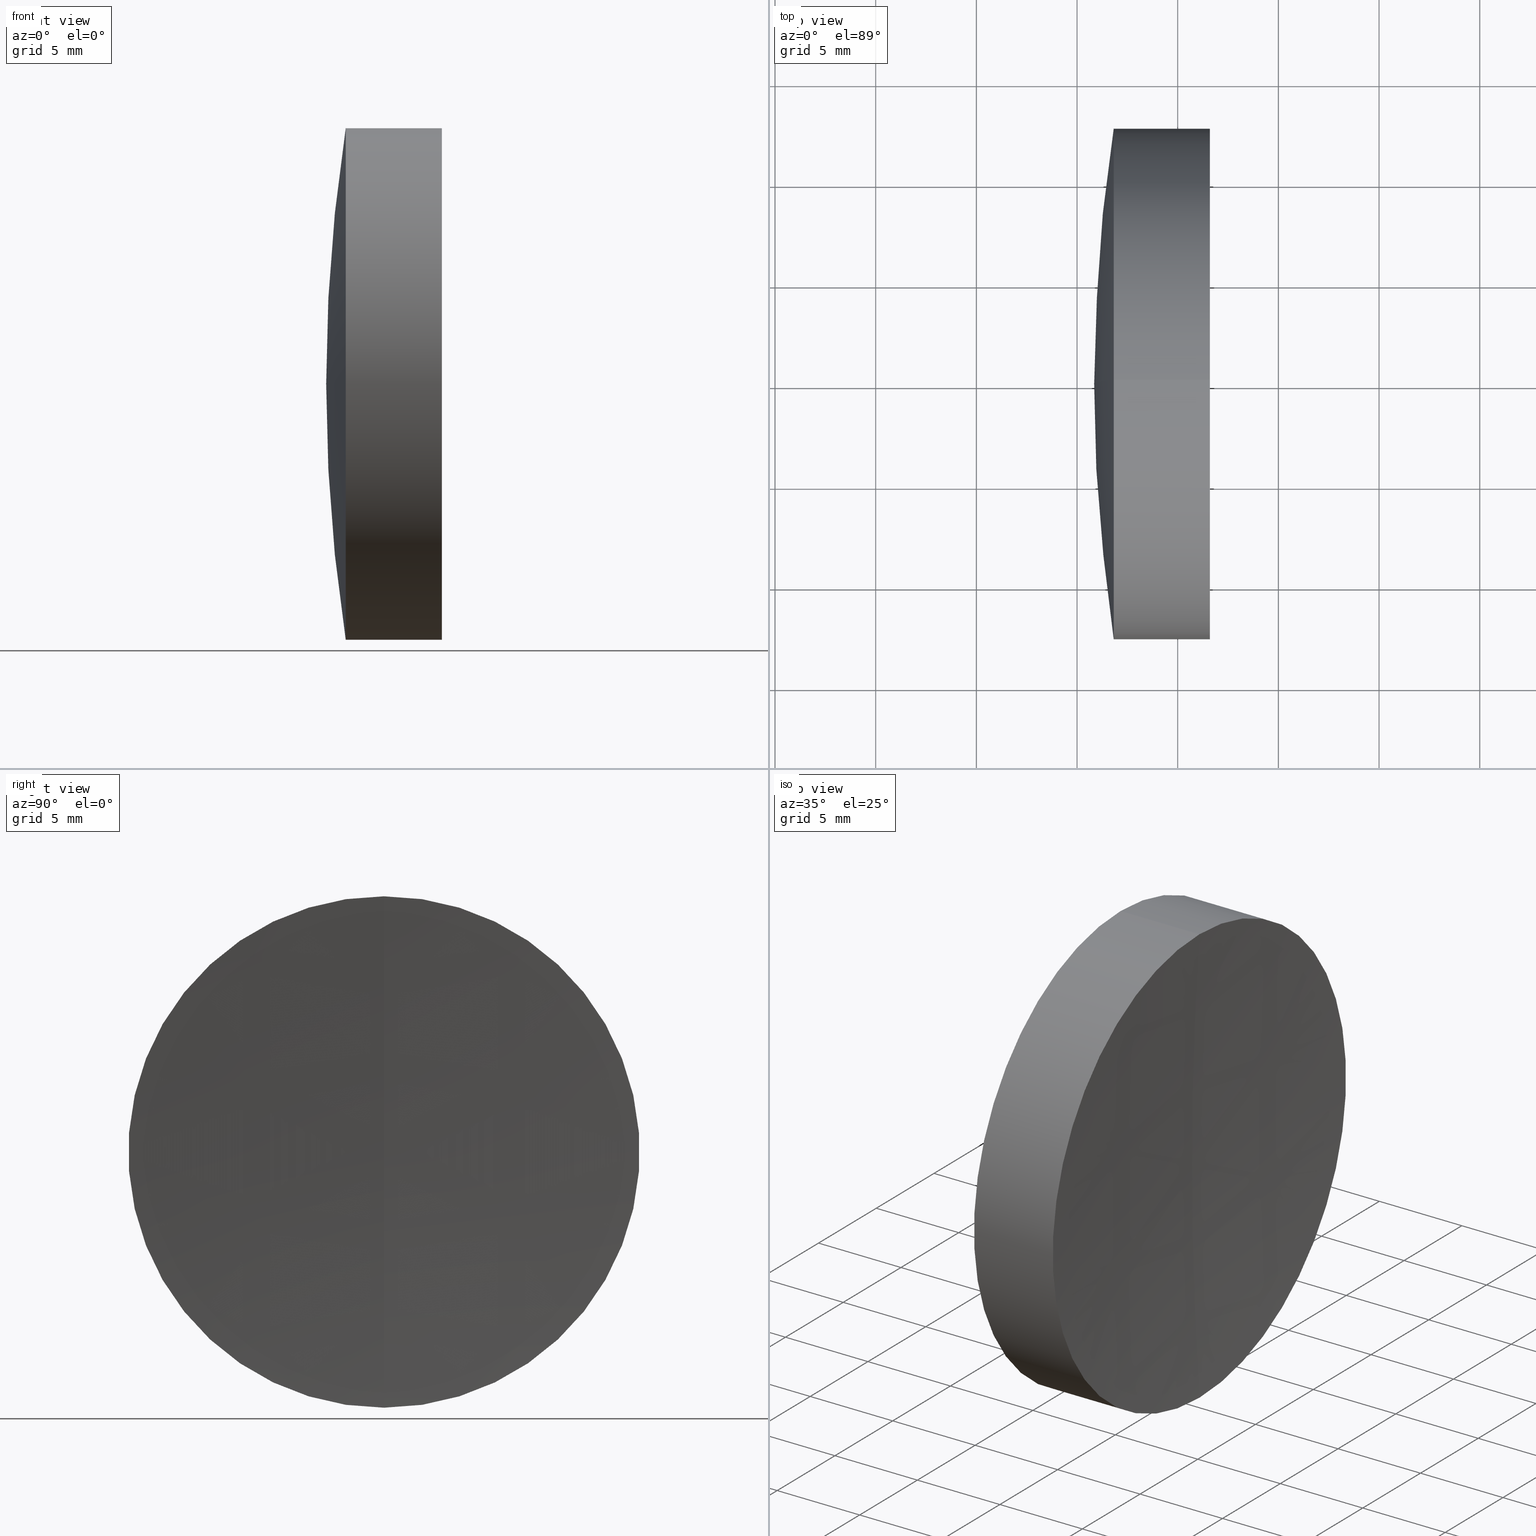
[diagram: canonical four-view strip — front | top / right | iso, engineering-drawing reading convention]
A machine part, canonical four-view strip (front | top / right | iso — engineering-drawing reading convention). The complete STEP part file that produces these views, byte-faithful:
ISO-10303-21;
HEADER;
FILE_DESCRIPTION (( 'STEP AP214' ),
    '1' );
FILE_NAME ('145128.STEP',
    '2019-06-03T09:07:29',
    ( 'user' ),
    ( '΢���й�' ),
    'SwSTEP 2.0',
    'SolidWorks 2016',
    '' );
FILE_SCHEMA (( 'AUTOMOTIVE_DESIGN' ));
ENDSEC;

DATA;
#1 = DIRECTION ( 'NONE',  ( 0.0000000000000000000, 0.0000000000000000000, 1.000000000000000000 ) ) ;
#2 = FACE_OUTER_BOUND ( 'NONE', #242, .T. ) ;
#3 = CARTESIAN_POINT ( 'NONE',  ( 371.5952472455173800, 1.555301434917140400E-015, -12.70000000000001500 ) ) ;
#4 = ORIENTED_EDGE ( 'NONE', *, *, #344, .F. ) ;
#5 = COLOUR_RGB ( '',1.000000000000000000, 1.000000000000000000, 1.000000000000000000 ) ;
#6 = CIRCLE ( 'NONE', #49, 12.69999999999971900 ) ;
#7 = STYLED_ITEM ( 'NONE', ( #332 ), #229 ) ;
#8 = CARTESIAN_POINT ( 'NONE',  ( 124.5233095260452400, 0.0000000000000000000, 12.69999999999971900 ) ) ;
#9 = ORIENTED_EDGE ( 'NONE', *, *, #106, .F. ) ;
#10 = EDGE_CURVE ( 'NONE', #26, #231, #109, .T. ) ;
#11 = ORIENTED_EDGE ( 'NONE', *, *, #302, .F. ) ;
#12 = CARTESIAN_POINT ( 'NONE',  ( 369.3504997922063400, 0.0000000000000000000, -2.743593203835203200E-013 ) ) ;
#13 = PRESENTATION_STYLE_ASSIGNMENT (( #93 ) ) ;
#14 = AXIS2_PLACEMENT_3D ( 'NONE', #253, #254, #248 ) ;
#15 = ORIENTED_EDGE ( 'NONE', *, *, #276, .T. ) ;
#16 = VERTEX_POINT ( 'NONE', #72 ) ;
#17 = AXIS2_PLACEMENT_3D ( 'NONE', #318, #194, #128 ) ;
#18 = FILL_AREA_STYLE ('',( #48 ) ) ;
#19 = EDGE_LOOP ( 'NONE', ( #157, #345, #137, #331 ) ) ;
#20 = CARTESIAN_POINT ( 'NONE',  ( 368.5899110541722100, 1.555301434917112200E-015, -12.70000000000006500 ) ) ;
#21 = DIRECTION ( 'NONE',  ( -1.000000000000000000, -0.0000000000000000000, -0.0000000000000000000 ) ) ;
#22 = VERTEX_POINT ( 'NONE', #3 ) ;
#23 = CIRCLE ( 'NONE', #267, 181.5499999999999800 ) ;
#24 = CIRCLE ( 'NONE', #308, 12.69999999999979500 ) ;
#25 = CARTESIAN_POINT ( 'NONE',  ( 371.5952472455173800, 0.0000000000000000000, 12.70000000000001500 ) ) ;
#26 = VERTEX_POINT ( 'NONE', #304 ) ;
#27 = DIRECTION ( 'NONE',  ( 0.0000000000000000000, -1.000000000000000000, -1.224646799147353200E-016 ) ) ;
#28 = CARTESIAN_POINT ( 'NONE',  ( 366.8207835879254600, 0.0000000000000000000, 0.0000000000000000000 ) ) ;
#29 = CIRCLE ( 'NONE', #272, 12.69999999999971900 ) ;
#30 = AXIS2_PLACEMENT_3D ( 'NONE', #221, #214, #219 ) ;
#31 = UNCERTAINTY_MEASURE_WITH_UNIT (LENGTH_MEASURE( 1.000000000000000100E-005 ), #114, 'distance_accuracy_value', 'NONE');
#32 = ADVANCED_FACE ( 'NONE', ( #258 ), #133, .F. ) ;
#33 = ORIENTED_EDGE ( 'NONE', *, *, #64, .T. ) ;
#34 = CARTESIAN_POINT ( 'NONE',  ( 449.4504997922063600, 0.0000000000000000000, -2.808750536690215900E-013 ) ) ;
#35 =( GEOMETRIC_REPRESENTATION_CONTEXT ( 3 ) GLOBAL_UNCERTAINTY_ASSIGNED_CONTEXT ( ( #31 ) ) GLOBAL_UNIT_ASSIGNED_CONTEXT ( ( #114, #115, #116 ) ) REPRESENTATION_CONTEXT ( 'NONE', 'WORKASPACE' ) );
#36 = DIRECTION ( 'NONE',  ( 0.0000000000000000000, 0.0000000000000000000, 1.000000000000000000 ) ) ;
#37 = ORIENTED_EDGE ( 'NONE', *, *, #86, .F. ) ;
#38 = ORIENTED_EDGE ( 'NONE', *, *, #243, .F. ) ;
#39 = DIRECTION ( 'NONE',  ( 0.0000000000000000000, -1.224646799147353200E-016, 1.000000000000000000 ) ) ;
#40 =( GEOMETRIC_REPRESENTATION_CONTEXT ( 3 ) GLOBAL_UNCERTAINTY_ASSIGNED_CONTEXT ( ( #170 ) ) GLOBAL_UNIT_ASSIGNED_CONTEXT ( ( #190, #50, #218 ) ) REPRESENTATION_CONTEXT ( 'NONE', 'WORKASPACE' ) );
#41 = VECTOR ( 'NONE', #65, 1000.000000000000000 ) ;
#42 = DIRECTION ( 'NONE',  ( -0.0000000000000000000, 1.000000000000000000, 1.224646799147353200E-016 ) ) ;
#43 = AXIS2_PLACEMENT_3D ( 'NONE', #275, #280, #66 ) ;
#44 = CARTESIAN_POINT ( 'NONE',  ( 262.9404997922063700, 0.0000000000000000000, -2.808750536783838100E-013 ) ) ;
#45 = FILL_AREA_STYLE_COLOUR ( '', #191 ) ;
#46 = LINE ( 'NONE', #323, #290 ) ;
#47 = CARTESIAN_POINT ( 'NONE',  ( 368.5899110541722100, 1.555301434917104100E-015, -12.69999999999971900 ) ) ;
#48 = FILL_AREA_STYLE_COLOUR ( '', #5 ) ;
#49 = AXIS2_PLACEMENT_3D ( 'NONE', #161, #163, #172 ) ;
#50 =( NAMED_UNIT ( * ) PLANE_ANGLE_UNIT ( ) SI_UNIT ( $, .RADIAN. ) );
#51 = EDGE_CURVE ( 'NONE', #210, #26, #55, .T. ) ;
#52 = SHAPE_DEFINITION_REPRESENTATION ( #185, #229 ) ;
#53 = DIRECTION ( 'NONE',  ( 0.0000000000000000000, 1.224646799147353200E-016, -1.000000000000000000 ) ) ;
#54 = MECHANICAL_DESIGN_GEOMETRIC_PRESENTATION_REPRESENTATION (  '', ( #151 ), #35 ) ;
#55 = CIRCLE ( 'NONE', #88, 106.4100000000000100 ) ;
#56 = AXIS2_PLACEMENT_3D ( 'NONE', #165, #264, #249 ) ;
#57 = DIRECTION ( 'NONE',  ( 0.0000000000000000000, 0.0000000000000000000, 1.000000000000000000 ) ) ;
#58 = DIRECTION ( 'NONE',  ( 0.0000000000000000000, 1.000000000000000000, -0.0000000000000000000 ) ) ;
#59 = CARTESIAN_POINT ( 'NONE',  ( 552.7004997922064100, 0.0000000000000000000, 0.0000000000000000000 ) ) ;
#60 = ORIENTED_EDGE ( 'NONE', *, *, #113, .F. ) ;
#61 = CIRCLE ( 'NONE', #30, 83.59999999999999400 ) ;
#62 = SPHERICAL_SURFACE ( 'NONE', #300, 83.59999999999999400 ) ;
#63 = DIRECTION ( 'NONE',  ( -1.000000000000000000, -0.0000000000000000000, -0.0000000000000000000 ) ) ;
#64 = EDGE_CURVE ( 'NONE', #210, #277, #101, .T. ) ;
#65 = DIRECTION ( 'NONE',  ( -1.000000000000000000, -0.0000000000000000000, -0.0000000000000000000 ) ) ;
#66 = DIRECTION ( 'NONE',  ( 0.0000000000000000000, -1.224646799147353200E-016, 1.000000000000000000 ) ) ;
#67 = VERTEX_POINT ( 'NONE', #25 ) ;
#68 = EDGE_CURVE ( 'NONE', #231, #16, #29, .T. ) ;
#69 = CARTESIAN_POINT ( 'NONE',  ( 552.7004997922064100, 0.0000000000000000000, 0.0000000000000000000 ) ) ;
#70 = AXIS2_PLACEMENT_3D ( 'NONE', #103, #126, #141 ) ;
#71 = SPHERICAL_SURFACE ( 'NONE', #111, 83.59999999999999400 ) ;
#72 = CARTESIAN_POINT ( 'NONE',  ( 366.8207835879254600, 1.555301434917101200E-015, -12.69999999999997600 ) ) ;
#73 = AXIS2_PLACEMENT_3D ( 'NONE', #261, #74, #75 ) ;
#74 = DIRECTION ( 'NONE',  ( -0.0000000000000000000, -1.000000000000000000, -0.0000000000000000000 ) ) ;
#75 = DIRECTION ( 'NONE',  ( 0.0000000000000000000, 0.0000000000000000000, -1.000000000000000000 ) ) ;
#76 = ORIENTED_EDGE ( 'NONE', *, *, #64, .F. ) ;
#77 = SURFACE_STYLE_USAGE ( .BOTH. , #314 ) ;
#78 = FACE_OUTER_BOUND ( 'NONE', #19, .T. ) ;
#79 = AXIS2_PLACEMENT_3D ( 'NONE', #299, #189, #309 ) ;
#80 = CIRCLE ( 'NONE', #324, 12.69999999999971900 ) ;
#81 = CARTESIAN_POINT ( 'NONE',  ( 368.5899110541722100, 0.0000000000000000000, 0.0000000000000000000 ) ) ;
#82 = AXIS2_PLACEMENT_3D ( 'NONE', #153, #155, #156 ) ;
#83 = EDGE_LOOP ( 'NONE', ( #234, #347, #198, #38 ) ) ;
#84 = SPHERICAL_SURFACE ( 'NONE', #70, 106.4100000000000100 ) ;
#85 = FILL_AREA_STYLE ('',( #45 ) ) ;
#86 = EDGE_CURVE ( 'NONE', #22, #67, #186, .T. ) ;
#87 = ADVANCED_FACE ( 'NONE', ( #168 ), #244, .F. ) ;
#88 = AXIS2_PLACEMENT_3D ( 'NONE', #120, #340, #143 ) ;
#89 = ORIENTED_EDGE ( 'NONE', *, *, #243, .T. ) ;
#90 = UNCERTAINTY_MEASURE_WITH_UNIT (LENGTH_MEASURE( 1.000000000000000100E-005 ), #95, 'distance_accuracy_value', 'NONE');
#91 = SURFACE_SIDE_STYLE ('',( #283 ) ) ;
#92 = ADVANCED_FACE ( 'NONE', ( #228 ), #235, .F. ) ;
#93 = SURFACE_STYLE_USAGE ( .BOTH. , #91 ) ;
#94 = AXIS2_PLACEMENT_3D ( 'NONE', #81, #181, #255 ) ;
#95 =( LENGTH_UNIT ( ) NAMED_UNIT ( * ) SI_UNIT ( .MILLI., .METRE. ) );
#96 = ORIENTED_EDGE ( 'NONE', *, *, #247, .T. ) ;
#97 = MECHANICAL_DESIGN_GEOMETRIC_PRESENTATION_REPRESENTATION (  '', ( #239 ), #312 ) ;
#98 = ORIENTED_EDGE ( 'NONE', *, *, #51, .T. ) ;
#99 = AXIS2_PLACEMENT_3D ( 'NONE', #298, #294, #301 ) ;
#100 =( NAMED_UNIT ( * ) PLANE_ANGLE_UNIT ( ) SI_UNIT ( $, .RADIAN. ) );
#101 = CIRCLE ( 'NONE', #43, 106.4100000000000100 ) ;
#102 =( NAMED_UNIT ( * ) SI_UNIT ( $, .STERADIAN. ) SOLID_ANGLE_UNIT ( ) );
#103 = CARTESIAN_POINT ( 'NONE',  ( 262.9404997922063700, 0.0000000000000000000, -2.808750536783838100E-013 ) ) ;
#104 = PRODUCT_RELATED_PRODUCT_CATEGORY ( 'part', '', ( #268 ) ) ;
#105 = ORIENTED_EDGE ( 'NONE', *, *, #124, .T. ) ;
#106 = EDGE_CURVE ( 'NONE', #67, #173, #178, .T. ) ;
#107 = EDGE_CURVE ( 'NONE', #16, #224, #117, .T. ) ;
#108 = DIRECTION ( 'NONE',  ( 0.0000000000000000000, 0.0000000000000000000, 1.000000000000000000 ) ) ;
#109 = LINE ( 'NONE', #8, #330 ) ;
#110 = SURFACE_SIDE_STYLE ('',( #139 ) ) ;
#111 = AXIS2_PLACEMENT_3D ( 'NONE', #34, #336, #209 ) ;
#112 = SURFACE_STYLE_USAGE ( .BOTH. , #110 ) ;
#113 = EDGE_CURVE ( 'NONE', #67, #22, #310, .T. ) ;
#114 =( LENGTH_UNIT ( ) NAMED_UNIT ( * ) SI_UNIT ( .MILLI., .METRE. ) );
#115 =( NAMED_UNIT ( * ) PLANE_ANGLE_UNIT ( ) SI_UNIT ( $, .RADIAN. ) );
#116 =( NAMED_UNIT ( * ) SI_UNIT ( $, .STERADIAN. ) SOLID_ANGLE_UNIT ( ) );
#117 = CIRCLE ( 'NONE', #99, 83.59999999999999400 ) ;
#118 = AXIS2_PLACEMENT_3D ( 'NONE', #342, #232, #284 ) ;
#119 = ADVANCED_FACE ( 'NONE', ( #78 ), #204, .T. ) ;
#120 = CARTESIAN_POINT ( 'NONE',  ( 262.9404997922063700, 0.0000000000000000000, -2.808750536783838100E-013 ) ) ;
#121 = FACE_OUTER_BOUND ( 'NONE', #337, .T. ) ;
#122 = PRODUCT_DEFINITION_FORMATION_WITH_SPECIFIED_SOURCE ( '�κ�', '', #268, .NOT_KNOWN. ) ;
#123 = EDGE_CURVE ( 'NONE', #277, #16, #46, .T. ) ;
#124 = EDGE_CURVE ( 'NONE', #67, #305, #222, .T. ) ;
#125 = FACE_OUTER_BOUND ( 'NONE', #311, .T. ) ;
#126 = DIRECTION ( 'NONE',  ( 0.0000000000000000000, 1.000000000000000000, 0.0000000000000000000 ) ) ;
#127 = CARTESIAN_POINT ( 'NONE',  ( 371.1504997922064000, 0.0000000000000000000, -1.111673131926009800E-014 ) ) ;
#128 = DIRECTION ( 'NONE',  ( 0.0000000000000000000, 0.0000000000000000000, 1.000000000000000000 ) ) ;
#129 = CIRCLE ( 'NONE', #346, 106.4100000000000100 ) ;
#130 = CARTESIAN_POINT ( 'NONE',  ( 365.8504997922063400, 0.0000000000000000000, -2.757560300485856500E-013 ) ) ;
#131 = CLOSED_SHELL ( 'NONE', ( #87, #167, #240, #92, #164, #32 ) ) ;
#132 = CARTESIAN_POINT ( 'NONE',  ( 262.9404997922063700, 0.0000000000000000000, -2.808750536783838100E-013 ) ) ;
#133 = SPHERICAL_SURFACE ( 'NONE', #73, 181.5499999999999800 ) ;
#134 = DIRECTION ( 'NONE',  ( 0.0000000000000000000, -1.000000000000000000, 0.0000000000000000000 ) ) ;
#135 = DIRECTION ( 'NONE',  ( 0.0000000000000000000, 0.0000000000000000000, -1.000000000000000000 ) ) ;
#136 = AXIS2_PLACEMENT_3D ( 'NONE', #69, #27, #53 ) ;
#137 = ORIENTED_EDGE ( 'NONE', *, *, #68, .F. ) ;
#138 = CYLINDRICAL_SURFACE ( 'NONE', #197, 12.69999999999971900 ) ;
#139 = SURFACE_STYLE_FILL_AREA ( #85 ) ;
#140 = PRODUCT_DEFINITION ( 'δ֪', '', #122, #179 ) ;
#141 = DIRECTION ( 'NONE',  ( 0.0000000000000000000, 0.0000000000000000000, 1.000000000000000000 ) ) ;
#142 = ORIENTED_EDGE ( 'NONE', *, *, #86, .T. ) ;
#143 = DIRECTION ( 'NONE',  ( 0.0000000000000000000, 0.0000000000000000000, -1.000000000000000000 ) ) ;
#144 = CIRCLE ( 'NONE', #94, 12.69999999999979500 ) ;
#145 = ADVANCED_FACE ( 'NONE', ( #2 ), #263, .T. ) ;
#146 = EDGE_CURVE ( 'NONE', #279, #173, #144, .T. ) ;
#147 = CARTESIAN_POINT ( 'NONE',  ( 449.4504997922063600, 0.0000000000000000000, -2.808750536690215900E-013 ) ) ;
#148 = EDGE_LOOP ( 'NONE', ( #220, #37, #96 ) ) ;
#149 = DIRECTION ( 'NONE',  ( 0.0000000000000000000, 0.0000000000000000000, 1.000000000000000000 ) ) ;
#150 = EDGE_LOOP ( 'NONE', ( #60, #105, #207 ) ) ;
#151 = STYLED_ITEM ( 'NONE', ( #238 ), #291 ) ;
#152 = VERTEX_POINT ( 'NONE', #192 ) ;
#153 = CARTESIAN_POINT ( 'NONE',  ( 368.5899110541722100, 0.0000000000000000000, 0.0000000000000000000 ) ) ;
#154 = VECTOR ( 'NONE', #260, 1000.000000000000000 ) ;
#155 = DIRECTION ( 'NONE',  ( -1.000000000000000000, -0.0000000000000000000, -0.0000000000000000000 ) ) ;
#156 = DIRECTION ( 'NONE',  ( 0.0000000000000000000, 0.0000000000000000000, 1.000000000000000000 ) ) ;
#157 = ORIENTED_EDGE ( 'NONE', *, *, #325, .T. ) ;
#158 = AXIS2_PLACEMENT_3D ( 'NONE', #208, #206, #205 ) ;
#159 = DIRECTION ( 'NONE',  ( 0.0000000000000000000, 1.000000000000000000, 0.0000000000000000000 ) ) ;
#160 = DIRECTION ( 'NONE',  ( -1.000000000000000000, -0.0000000000000000000, -0.0000000000000000000 ) ) ;
#161 = CARTESIAN_POINT ( 'NONE',  ( 368.5899110541722100, 0.0000000000000000000, 0.0000000000000000000 ) ) ;
#162 = EDGE_LOOP ( 'NONE', ( #76, #98, #292 ) ) ;
#163 = DIRECTION ( 'NONE',  ( -1.000000000000000000, -0.0000000000000000000, -0.0000000000000000000 ) ) ;
#164 = ADVANCED_FACE ( 'NONE', ( #125 ), #321, .T. ) ;
#165 = CARTESIAN_POINT ( 'NONE',  ( 552.7004997922064100, 0.0000000000000000000, 0.0000000000000000000 ) ) ;
#166 = ORIENTED_EDGE ( 'NONE', *, *, #51, .F. ) ;
#167 = ADVANCED_FACE ( 'NONE', ( #274 ), #193, .T. ) ;
#168 = FACE_OUTER_BOUND ( 'NONE', #150, .T. ) ;
#169 = DIRECTION ( 'NONE',  ( -1.000000000000000000, -0.0000000000000000000, -0.0000000000000000000 ) ) ;
#170 = UNCERTAINTY_MEASURE_WITH_UNIT (LENGTH_MEASURE( 1.000000000000000100E-005 ), #190, 'distance_accuracy_value', 'NONE');
#171 = ORIENTED_EDGE ( 'NONE', *, *, #146, .T. ) ;
#172 = DIRECTION ( 'NONE',  ( 0.0000000000000000000, 0.0000000000000000000, 1.000000000000000000 ) ) ;
#173 = VERTEX_POINT ( 'NONE', #288 ) ;
#174 =( GEOMETRIC_REPRESENTATION_CONTEXT ( 3 ) GLOBAL_UNCERTAINTY_ASSIGNED_CONTEXT ( ( #296 ) ) GLOBAL_UNIT_ASSIGNED_CONTEXT ( ( #180, #227, #184 ) ) REPRESENTATION_CONTEXT ( 'NONE', 'WORKASPACE' ) );
#175 = DIRECTION ( 'NONE',  ( 0.0000000000000000000, 0.0000000000000000000, 1.000000000000000000 ) ) ;
#176 = ORIENTED_EDGE ( 'NONE', *, *, #107, .F. ) ;
#177 = FACE_OUTER_BOUND ( 'NONE', #297, .T. ) ;
#178 = LINE ( 'NONE', #233, #154 ) ;
#179 = PRODUCT_DEFINITION_CONTEXT ( 'detailed design', #199, 'design' ) ;
#180 =( LENGTH_UNIT ( ) NAMED_UNIT ( * ) SI_UNIT ( .MILLI., .METRE. ) );
#181 = DIRECTION ( 'NONE',  ( -1.000000000000000000, -0.0000000000000000000, -0.0000000000000000000 ) ) ;
#182 = CLOSED_SHELL ( 'NONE', ( #145, #119, #212, #343, #223, #322 ) ) ;
#183 = FILL_AREA_STYLE_COLOUR ( '', #307 ) ;
#184 =( NAMED_UNIT ( * ) SI_UNIT ( $, .STERADIAN. ) SOLID_ANGLE_UNIT ( ) );
#185 = PRODUCT_DEFINITION_SHAPE ( 'NONE', 'NONE',  #140 ) ;
#186 = CIRCLE ( 'NONE', #14, 12.70000000000001500 ) ;
#187 = FILL_AREA_STYLE ('',( #183 ) ) ;
#188 = APPLICATION_CONTEXT ( 'automotive_design' ) ;
#189 = DIRECTION ( 'NONE',  ( -1.000000000000000000, -0.0000000000000000000, -0.0000000000000000000 ) ) ;
#190 =( LENGTH_UNIT ( ) NAMED_UNIT ( * ) SI_UNIT ( .MILLI., .METRE. ) );
#191 = COLOUR_RGB ( '',1.000000000000000000, 1.000000000000000000, 1.000000000000000000 ) ;
#192 = CARTESIAN_POINT ( 'NONE',  ( 369.3504997922063400, 0.0000000000000000000, -2.743593203835203200E-013 ) ) ;
#193 = CYLINDRICAL_SURFACE ( 'NONE', #289, 12.69999999999990500 ) ;
#194 = DIRECTION ( 'NONE',  ( 0.0000000000000000000, 1.000000000000000000, 0.0000000000000000000 ) ) ;
#195 = APPLICATION_PROTOCOL_DEFINITION ( 'draft international standard', 'automotive_design', 1998, #199 ) ;
#196 = ORIENTED_EDGE ( 'NONE', *, *, #113, .T. ) ;
#197 = AXIS2_PLACEMENT_3D ( 'NONE', #295, #270, #108 ) ;
#198 = ORIENTED_EDGE ( 'NONE', *, *, #10, .T. ) ;
#199 = APPLICATION_CONTEXT ( 'automotive_design' ) ;
#200 = DIRECTION ( 'NONE',  ( 0.0000000000000000000, 0.0000000000000000000, 1.000000000000000000 ) ) ;
#201 = ORIENTED_EDGE ( 'NONE', *, *, #269, .T. ) ;
#202 = ORIENTED_EDGE ( 'NONE', *, *, #302, .T. ) ;
#203 = PRODUCT_CONTEXT ( 'NONE', #188, 'mechanical' ) ;
#204 = CYLINDRICAL_SURFACE ( 'NONE', #79, 12.69999999999971900 ) ;
#205 = DIRECTION ( 'NONE',  ( 1.000000000000000000, 0.0000000000000000000, 0.0000000000000000000 ) ) ;
#206 = DIRECTION ( 'NONE',  ( 0.0000000000000000000, 0.0000000000000000000, 1.000000000000000000 ) ) ;
#207 = ORIENTED_EDGE ( 'NONE', *, *, #247, .F. ) ;
#208 = CARTESIAN_POINT ( 'NONE',  ( 0.0000000000000000000, 0.0000000000000000000, 0.0000000000000000000 ) ) ;
#209 = DIRECTION ( 'NONE',  ( 0.0000000000000000000, 0.0000000000000000000, 1.000000000000000000 ) ) ;
#210 = VERTEX_POINT ( 'NONE', #12 ) ;
#211 = CIRCLE ( 'NONE', #82, 12.69999999999971900 ) ;
#212 = ADVANCED_FACE ( 'NONE', ( #273 ), #71, .T. ) ;
#213 = EDGE_CURVE ( 'NONE', #173, #279, #24, .T. ) ;
#214 = DIRECTION ( 'NONE',  ( 0.0000000000000000000, -1.000000000000000000, 0.0000000000000000000 ) ) ;
#215 = ORIENTED_EDGE ( 'NONE', *, *, #325, .F. ) ;
#216 = ORIENTED_EDGE ( 'NONE', *, *, #146, .F. ) ;
#217 = ORIENTED_EDGE ( 'NONE', *, *, #213, .T. ) ;
#218 =( NAMED_UNIT ( * ) SI_UNIT ( $, .STERADIAN. ) SOLID_ANGLE_UNIT ( ) );
#219 = DIRECTION ( 'NONE',  ( 0.0000000000000000000, 0.0000000000000000000, -1.000000000000000000 ) ) ;
#220 = ORIENTED_EDGE ( 'NONE', *, *, #124, .F. ) ;
#221 = CARTESIAN_POINT ( 'NONE',  ( 449.4504997922063600, 0.0000000000000000000, -2.808750536690215900E-013 ) ) ;
#222 = CIRCLE ( 'NONE', #136, 181.5499999999999800 ) ;
#223 = ADVANCED_FACE ( 'NONE', ( #306 ), #138, .T. ) ;
#224 = VERTEX_POINT ( 'NONE', #130 ) ;
#225 = AXIS2_PLACEMENT_3D ( 'NONE', #44, #42, #39 ) ;
#226 = LINE ( 'NONE', #259, #41 ) ;
#227 =( NAMED_UNIT ( * ) PLANE_ANGLE_UNIT ( ) SI_UNIT ( $, .RADIAN. ) );
#228 = FACE_OUTER_BOUND ( 'NONE', #250, .T. ) ;
#229 = ADVANCED_BREP_SHAPE_REPRESENTATION ( '145128', ( #278, #291, #158 ), #174 ) ;
#230 = CARTESIAN_POINT ( 'NONE',  ( -0.5519199926577972300, 0.0000000000000000000, 0.0000000000000000000 ) ) ;
#231 = VERTEX_POINT ( 'NONE', #246 ) ;
#232 = DIRECTION ( 'NONE',  ( 0.0000000000000000000, 1.000000000000000000, 0.0000000000000000000 ) ) ;
#233 = CARTESIAN_POINT ( 'NONE',  ( -0.5519199926577972300, 0.0000000000000000000, 12.69999999999990500 ) ) ;
#234 = ORIENTED_EDGE ( 'NONE', *, *, #123, .F. ) ;
#235 = SPHERICAL_SURFACE ( 'NONE', #341, 106.4100000000000100 ) ;
#236 = CARTESIAN_POINT ( 'NONE',  ( 262.9404997922063700, 0.0000000000000000000, -2.808750536783838100E-013 ) ) ;
#237 = CIRCLE ( 'NONE', #225, 106.4100000000000100 ) ;
#238 = PRESENTATION_STYLE_ASSIGNMENT (( #112 ) ) ;
#239 = STYLED_ITEM ( 'NONE', ( #13 ), #278 ) ;
#240 = ADVANCED_FACE ( 'NONE', ( #177 ), #282, .F. ) ;
#241 = DIRECTION ( 'NONE',  ( 0.0000000000000000000, 0.0000000000000000000, 1.000000000000000000 ) ) ;
#242 = EDGE_LOOP ( 'NONE', ( #166, #33, #215 ) ) ;
#243 = EDGE_CURVE ( 'NONE', #16, #231, #80, .T. ) ;
#244 = SPHERICAL_SURFACE ( 'NONE', #56, 181.5499999999999800 ) ;
#245 = DIRECTION ( 'NONE',  ( 0.0000000000000000000, 1.000000000000000000, 0.0000000000000000000 ) ) ;
#246 = CARTESIAN_POINT ( 'NONE',  ( 366.8207835879254600, 0.0000000000000000000, 12.69999999999969600 ) ) ;
#247 = EDGE_CURVE ( 'NONE', #22, #305, #23, .T. ) ;
#248 = DIRECTION ( 'NONE',  ( 0.0000000000000000000, 0.0000000000000000000, 1.000000000000000000 ) ) ;
#249 = DIRECTION ( 'NONE',  ( 0.0000000000000000000, 0.0000000000000000000, -1.000000000000000000 ) ) ;
#250 = EDGE_LOOP ( 'NONE', ( #265, #202, #217 ) ) ;
#251 = CARTESIAN_POINT ( 'NONE',  ( 368.5899110541722100, 0.0000000000000000000, 0.0000000000000000000 ) ) ;
#252 = AXIS2_PLACEMENT_3D ( 'NONE', #230, #319, #149 ) ;
#253 = CARTESIAN_POINT ( 'NONE',  ( 371.5952472455173800, 0.0000000000000000000, 0.0000000000000000000 ) ) ;
#254 = DIRECTION ( 'NONE',  ( -1.000000000000000000, -0.0000000000000000000, -0.0000000000000000000 ) ) ;
#255 = DIRECTION ( 'NONE',  ( 0.0000000000000000000, 0.0000000000000000000, 1.000000000000000000 ) ) ;
#256 = PRESENTATION_LAYER_ASSIGNMENT (  '', '', ( #239 ) ) ;
#257 = EDGE_LOOP ( 'NONE', ( #196, #201, #313, #9 ) ) ;
#258 = FACE_OUTER_BOUND ( 'NONE', #148, .T. ) ;
#259 = CARTESIAN_POINT ( 'NONE',  ( -0.5519199926577972300, 1.555301434917127000E-015, -12.69999999999990500 ) ) ;
#260 = DIRECTION ( 'NONE',  ( -1.000000000000000000, -0.0000000000000000000, -0.0000000000000000000 ) ) ;
#261 = CARTESIAN_POINT ( 'NONE',  ( 552.7004997922064100, 0.0000000000000000000, 0.0000000000000000000 ) ) ;
#262 = CARTESIAN_POINT ( 'NONE',  ( 366.8207835879254600, 0.0000000000000000000, 0.0000000000000000000 ) ) ;
#263 = SPHERICAL_SURFACE ( 'NONE', #118, 106.4100000000000100 ) ;
#264 = DIRECTION ( 'NONE',  ( -0.0000000000000000000, -1.000000000000000000, -0.0000000000000000000 ) ) ;
#265 = ORIENTED_EDGE ( 'NONE', *, *, #276, .F. ) ;
#266 = DIRECTION ( 'NONE',  ( 0.0000000000000000000, 0.0000000000000000000, 1.000000000000000000 ) ) ;
#267 = AXIS2_PLACEMENT_3D ( 'NONE', #59, #58, #57 ) ;
#268 = PRODUCT ( '145128', '145128', '', ( #203 ) ) ;
#269 = EDGE_CURVE ( 'NONE', #22, #279, #226, .T. ) ;
#270 = DIRECTION ( 'NONE',  ( -1.000000000000000000, -0.0000000000000000000, -0.0000000000000000000 ) ) ;
#271 = EDGE_LOOP ( 'NONE', ( #339, #320, #4 ) ) ;
#272 = AXIS2_PLACEMENT_3D ( 'NONE', #28, #63, #36 ) ;
#273 = FACE_OUTER_BOUND ( 'NONE', #271, .T. ) ;
#274 = FACE_OUTER_BOUND ( 'NONE', #257, .T. ) ;
#275 = CARTESIAN_POINT ( 'NONE',  ( 262.9404997922063700, 0.0000000000000000000, -2.808750536783838100E-013 ) ) ;
#276 = EDGE_CURVE ( 'NONE', #152, #279, #237, .T. ) ;
#277 = VERTEX_POINT ( 'NONE', #47 ) ;
#278 = MANIFOLD_SOLID_BREP ( '��ת1', #182 ) ;
#279 = VERTEX_POINT ( 'NONE', #20 ) ;
#280 = DIRECTION ( 'NONE',  ( -0.0000000000000000000, 1.000000000000000000, 1.224646799147353200E-016 ) ) ;
#281 = APPLICATION_PROTOCOL_DEFINITION ( 'draft international standard', 'automotive_design', 1998, #188 ) ;
#282 = SPHERICAL_SURFACE ( 'NONE', #17, 106.4100000000000100 ) ;
#283 = SURFACE_STYLE_FILL_AREA ( #18 ) ;
#284 = DIRECTION ( 'NONE',  ( 0.0000000000000000000, 0.0000000000000000000, 1.000000000000000000 ) ) ;
#285 = DIRECTION ( 'NONE',  ( -1.000000000000000000, -0.0000000000000000000, -0.0000000000000000000 ) ) ;
#286 = ORIENTED_EDGE ( 'NONE', *, *, #344, .T. ) ;
#287 = DIRECTION ( 'NONE',  ( -1.000000000000000000, -0.0000000000000000000, -0.0000000000000000000 ) ) ;
#288 = CARTESIAN_POINT ( 'NONE',  ( 368.5899110541722100, 0.0000000000000000000, 12.69999999999978400 ) ) ;
#289 = AXIS2_PLACEMENT_3D ( 'NONE', #329, #285, #200 ) ;
#290 = VECTOR ( 'NONE', #160, 1000.000000000000000 ) ;
#291 = MANIFOLD_SOLID_BREP ( '��ת3', #131 ) ;
#292 = ORIENTED_EDGE ( 'NONE', *, *, #335, .F. ) ;
#293 = AXIS2_PLACEMENT_3D ( 'NONE', #303, #316, #315 ) ;
#294 = DIRECTION ( 'NONE',  ( -0.0000000000000000000, 1.000000000000000000, 1.224646799147353200E-016 ) ) ;
#295 = CARTESIAN_POINT ( 'NONE',  ( 124.5233095260452400, 0.0000000000000000000, 0.0000000000000000000 ) ) ;
#296 = UNCERTAINTY_MEASURE_WITH_UNIT (LENGTH_MEASURE( 1.000000000000000100E-005 ), #180, 'distance_accuracy_value', 'NONE');
#297 = EDGE_LOOP ( 'NONE', ( #11, #15, #171 ) ) ;
#298 = CARTESIAN_POINT ( 'NONE',  ( 449.4504997922063600, 0.0000000000000000000, -2.808750536690215900E-013 ) ) ;
#299 = CARTESIAN_POINT ( 'NONE',  ( 124.5233095260452400, 0.0000000000000000000, 0.0000000000000000000 ) ) ;
#300 = AXIS2_PLACEMENT_3D ( 'NONE', #147, #159, #175 ) ;
#301 = DIRECTION ( 'NONE',  ( 0.0000000000000000000, -1.224646799147353500E-016, 1.000000000000000000 ) ) ;
#302 = EDGE_CURVE ( 'NONE', #152, #173, #129, .T. ) ;
#303 = CARTESIAN_POINT ( 'NONE',  ( 371.5952472455173800, 0.0000000000000000000, 0.0000000000000000000 ) ) ;
#304 = CARTESIAN_POINT ( 'NONE',  ( 368.5899110541722100, 0.0000000000000000000, 12.69999999999971900 ) ) ;
#305 = VERTEX_POINT ( 'NONE', #127 ) ;
#306 = FACE_OUTER_BOUND ( 'NONE', #83, .T. ) ;
#307 = COLOUR_RGB ( '',1.000000000000000000, 1.000000000000000000, 1.000000000000000000 ) ;
#308 = AXIS2_PLACEMENT_3D ( 'NONE', #251, #287, #266 ) ;
#309 = DIRECTION ( 'NONE',  ( 0.0000000000000000000, 0.0000000000000000000, 1.000000000000000000 ) ) ;
#310 = CIRCLE ( 'NONE', #293, 12.70000000000001500 ) ;
#311 = EDGE_LOOP ( 'NONE', ( #338, #142, #328, #216 ) ) ;
#312 =( GEOMETRIC_REPRESENTATION_CONTEXT ( 3 ) GLOBAL_UNCERTAINTY_ASSIGNED_CONTEXT ( ( #90 ) ) GLOBAL_UNIT_ASSIGNED_CONTEXT ( ( #95, #100, #102 ) ) REPRESENTATION_CONTEXT ( 'NONE', 'WORKASPACE' ) );
#313 = ORIENTED_EDGE ( 'NONE', *, *, #213, .F. ) ;
#314 = SURFACE_SIDE_STYLE ('',( #333 ) ) ;
#315 = DIRECTION ( 'NONE',  ( 0.0000000000000000000, 0.0000000000000000000, 1.000000000000000000 ) ) ;
#316 = DIRECTION ( 'NONE',  ( -1.000000000000000000, -0.0000000000000000000, -0.0000000000000000000 ) ) ;
#317 = MECHANICAL_DESIGN_GEOMETRIC_PRESENTATION_REPRESENTATION (  '', ( #7 ), #40 ) ;
#318 = CARTESIAN_POINT ( 'NONE',  ( 262.9404997922063700, 0.0000000000000000000, -2.808750536783838100E-013 ) ) ;
#319 = DIRECTION ( 'NONE',  ( -1.000000000000000000, -0.0000000000000000000, -0.0000000000000000000 ) ) ;
#320 = ORIENTED_EDGE ( 'NONE', *, *, #107, .T. ) ;
#321 = CYLINDRICAL_SURFACE ( 'NONE', #252, 12.69999999999990500 ) ;
#322 = ADVANCED_FACE ( 'NONE', ( #326 ), #84, .T. ) ;
#323 = CARTESIAN_POINT ( 'NONE',  ( 124.5233095260452400, 1.555301434917104100E-015, -12.69999999999971900 ) ) ;
#324 = AXIS2_PLACEMENT_3D ( 'NONE', #262, #21, #241 ) ;
#325 = EDGE_CURVE ( 'NONE', #26, #277, #211, .T. ) ;
#326 = FACE_OUTER_BOUND ( 'NONE', #162, .T. ) ;
#327 = PRESENTATION_LAYER_ASSIGNMENT (  '', '', ( #151 ) ) ;
#328 = ORIENTED_EDGE ( 'NONE', *, *, #106, .T. ) ;
#329 = CARTESIAN_POINT ( 'NONE',  ( -0.5519199926577972300, 0.0000000000000000000, 0.0000000000000000000 ) ) ;
#330 = VECTOR ( 'NONE', #169, 1000.000000000000000 ) ;
#331 = ORIENTED_EDGE ( 'NONE', *, *, #10, .F. ) ;
#332 = PRESENTATION_STYLE_ASSIGNMENT (( #77 ) ) ;
#333 = SURFACE_STYLE_FILL_AREA ( #187 ) ;
#334 = PRESENTATION_LAYER_ASSIGNMENT (  '', '', ( #7 ) ) ;
#335 = EDGE_CURVE ( 'NONE', #277, #26, #6, .T. ) ;
#336 = DIRECTION ( 'NONE',  ( 0.0000000000000000000, 1.000000000000000000, 0.0000000000000000000 ) ) ;
#337 = EDGE_LOOP ( 'NONE', ( #176, #89, #286 ) ) ;
#338 = ORIENTED_EDGE ( 'NONE', *, *, #269, .F. ) ;
#339 = ORIENTED_EDGE ( 'NONE', *, *, #68, .T. ) ;
#340 = DIRECTION ( 'NONE',  ( 0.0000000000000000000, -1.000000000000000000, 0.0000000000000000000 ) ) ;
#341 = AXIS2_PLACEMENT_3D ( 'NONE', #236, #245, #1 ) ;
#342 = CARTESIAN_POINT ( 'NONE',  ( 262.9404997922063700, 0.0000000000000000000, -2.808750536783838100E-013 ) ) ;
#343 = ADVANCED_FACE ( 'NONE', ( #121 ), #62, .T. ) ;
#344 = EDGE_CURVE ( 'NONE', #231, #224, #61, .T. ) ;
#345 = ORIENTED_EDGE ( 'NONE', *, *, #123, .T. ) ;
#346 = AXIS2_PLACEMENT_3D ( 'NONE', #132, #134, #135 ) ;
#347 = ORIENTED_EDGE ( 'NONE', *, *, #335, .T. ) ;
ENDSEC;
END-ISO-10303-21;
